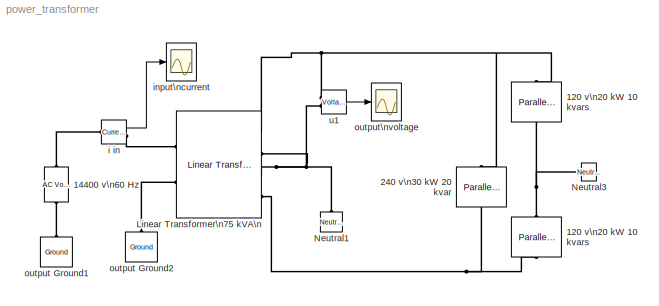
MODEL power_transformer
KIND model
BLOCK [Reference] 120 v\n20 kW 10 kvars  REF=powerlib/Elements/Parallel RLC Load
  ActivePower = 20e3
  AttributesFormatString = \\n
  CapacitivePower = 0
  InductivePower = 10e3
  LConnTagsString = a
  Measurements = None
  NominalFrequency = 60
  NominalVoltage = 120
  PhysicalDomain = powersysdomain
  PortType = p1
  Ports = [0, 0, 0, 0, 0, 1, 1]
  RConnTagsString = __new0
  SourceBlock = powerlib/Elements/Parallel RLC Load
  SourceType = Parallel RLC Load
  SubClassName = unknown
BLOCK [Reference] 120 v\n20 kW 10 kvars   REF=powerlib/Elements/Parallel RLC Load
  ActivePower = 20e3
  AttributesFormatString = \\n
  CapacitivePower = 0
  InductivePower = 10e3
  LConnTagsString = a
  Measurements = None
  NominalFrequency = 60
  NominalVoltage = 120
  PhysicalDomain = powersysdomain
  PortType = p1
  Ports = [0, 0, 0, 0, 0, 1, 1]
  RConnTagsString = __new0
  SourceBlock = powerlib/Elements/Parallel RLC Load
  SourceType = Parallel RLC Load
  SubClassName = unknown
BLOCK [Reference] 14400 v\n60 Hz  REF=powerlib/Electrical\nSources/AC Voltage Source
  Amplitude = 14400*sqrt(2)
  AttributesFormatString = \\n
  Description = source block
  Frequency = 60
  Measurements = None
  Phase = 0
  Ports = [0, 0, 0, 0, 0, 1, 1]
  SampleTime = 0
  SourceBlock = powerlib/Electrical\nSources/AC Voltage Source
  SourceType = AC Voltage Source
BLOCK [Reference] 240 v\n30 kW 20 kvar  REF=powerlib/Elements/Parallel RLC Load
  ActivePower = 30e3
  AttributesFormatString = \\n
  CapacitivePower = 20e3
  InductivePower = 0
  LConnTagsString = a
  Measurements = None
  NominalFrequency = 60
  NominalVoltage = 240
  PhysicalDomain = powersysdomain
  PortType = p1
  Ports = [0, 0, 0, 0, 0, 1, 1]
  RConnTagsString = __new0
  SourceBlock = powerlib/Elements/Parallel RLC Load
  SourceType = Parallel RLC Load
  SubClassName = unknown
BLOCK [Reference] Linear Transformer\n75 kVA\n  REF=powerlib/Elements/Linear Transformer
  LConnTagsString = a|b
  Measurements = None
  NominalPower = [75e3,60]
  PhysicalDomain = powersysdomain
  PortType = p1
  Ports = [0, 0, 0, 0, 0, 2, 4]
  RConnTagsString = A|B|C|D
  RmLm = [50,50]
  SourceBlock = powerlib/Elements/Linear Transformer
  SourceType = Linear Transformer
  SubClassName = unknown
  ThreeWindings = on
  winding1 = [14.4e3 0.01,0.03]
  winding2 = [120,0.02,0]
  winding3 = [120,0.02,0]
BLOCK [Reference] Neutral1  REF=powerlib/Elements/Neutral
  AttributesFormatString = node %<NodeNumber>
  LConnTagsString = a
  NodeNumber = 50
  PhysicalDomain = powersysdomain
  PortType = p1
  Ports = [0, 0, 0, 0, 0, 1]
  SourceBlock = powerlib/Elements/Neutral
  SourceType = Neutral
  SubClassName = unknown
BLOCK [Reference] Neutral3  REF=powerlib/Elements/Neutral
  AttributesFormatString = node %<NodeNumber>
  LConnTagsString = a
  NodeNumber = 50
  PhysicalDomain = powersysdomain
  PortType = p1
  Ports = [0, 0, 0, 0, 0, 1]
  SourceBlock = powerlib/Elements/Neutral
  SourceType = Neutral
  SubClassName = unknown
BLOCK [Reference] i in  REF=powerlib/Measurements/Current Measurement
  AttributesFormatString = \\n
  OutputType = Magnitude
  PSBequivalent = 0
  PhasorSimulation = off
  Ports = [0, 1, 0, 0, 0, 1, 1]
  SourceBlock = powerlib/Measurements/Current Measurement
  SourceType = Current Measurement
  Tag = PoWeRsYsTeMmEaSuReMeNt
BLOCK [Scope] input\ncurrent
  DataFormat = Array
  DeleteFcn = simscope BlockIsBeingDestroyed
  NumInputPorts = 1
  Ports = [1]
  PostSaveFcn = simscope Save
  TickLabels = on
  TimeRange = 0.1
  YMax = 10
  YMin = -10
BLOCK [Reference] output Ground1  REF=powerlib/Elements/Ground
  AttributesFormatString = \\n
  LConnTagsString = a
  PhysicalDomain = powersysdomain
  PortType = p1
  Ports = [0, 0, 0, 0, 0, 1]
  SourceBlock = powerlib/Elements/Ground
  SourceType = Ground
  SubClassName = unknown
BLOCK [Reference] output Ground2  REF=powerlib/Elements/Ground
  AttributesFormatString = \\n
  LConnTagsString = a
  PhysicalDomain = powersysdomain
  PortType = p1
  Ports = [0, 0, 0, 0, 0, 1]
  SourceBlock = powerlib/Elements/Ground
  SourceType = Ground
  SubClassName = unknown
BLOCK [Scope] output\nvoltage
  DataFormat = Array
  DeleteFcn = simscope BlockIsBeingDestroyed
  NumInputPorts = 1
  Ports = [1]
  PostSaveFcn = simscope Save
  TickLabels = on
  TimeRange = 0.1
  YMax = 200
  YMin = -200
BLOCK [Reference] u1  REF=powerlib/Measurements/Voltage Measurement
  AttributesFormatString = \\n
  OutputType = Magnitude
  PSBequivalent = 0
  PhasorSimulation = off
  Ports = [0, 1, 0, 0, 0, 2]
  SourceBlock = powerlib/Measurements/Voltage Measurement
  SourceType = Voltage Measurement
  Tag = PoWeRsYsTeMmEaSuReMeNt
LINE i in:1 -> input\ncurrent:1
LINE u1:1 -> output\nvoltage:1
PNET net1: 120 v\n20 kW 10 kvars :LConn1 -- 240 v\n30 kW 20 kvar:RConn1 -- Linear Transformer\n75 kVA\n:RConn4
PNET net2: 120 v\n20 kW 10 kvars :RConn1 -- 120 v\n20 kW 10 kvars:RConn1 -- Neutral3:LConn1
PNET net3: 120 v\n20 kW 10 kvars:LConn1 -- 240 v\n30 kW 20 kvar:LConn1 -- Linear Transformer\n75 kVA\n:RConn1 -- u1:LConn1
PLINE 14400 v\n60 Hz:LConn1 -- output Ground1:LConn1
PLINE 14400 v\n60 Hz:RConn1 -- i in:LConn1
PLINE Linear Transformer\n75 kVA\n:LConn1 -- i in:RConn1
PLINE Linear Transformer\n75 kVA\n:LConn2 -- output Ground2:LConn1
PNET net4: Linear Transformer\n75 kVA\n:RConn2 -- Linear Transformer\n75 kVA\n:RConn3 -- Neutral1:LConn1 -- u1:LConn2
note: PNET lines group multi-terminal physical nets as a canonical sorted terminal list (undirected conserving connections); 2-terminal nets keep the pairwise PLINE form
